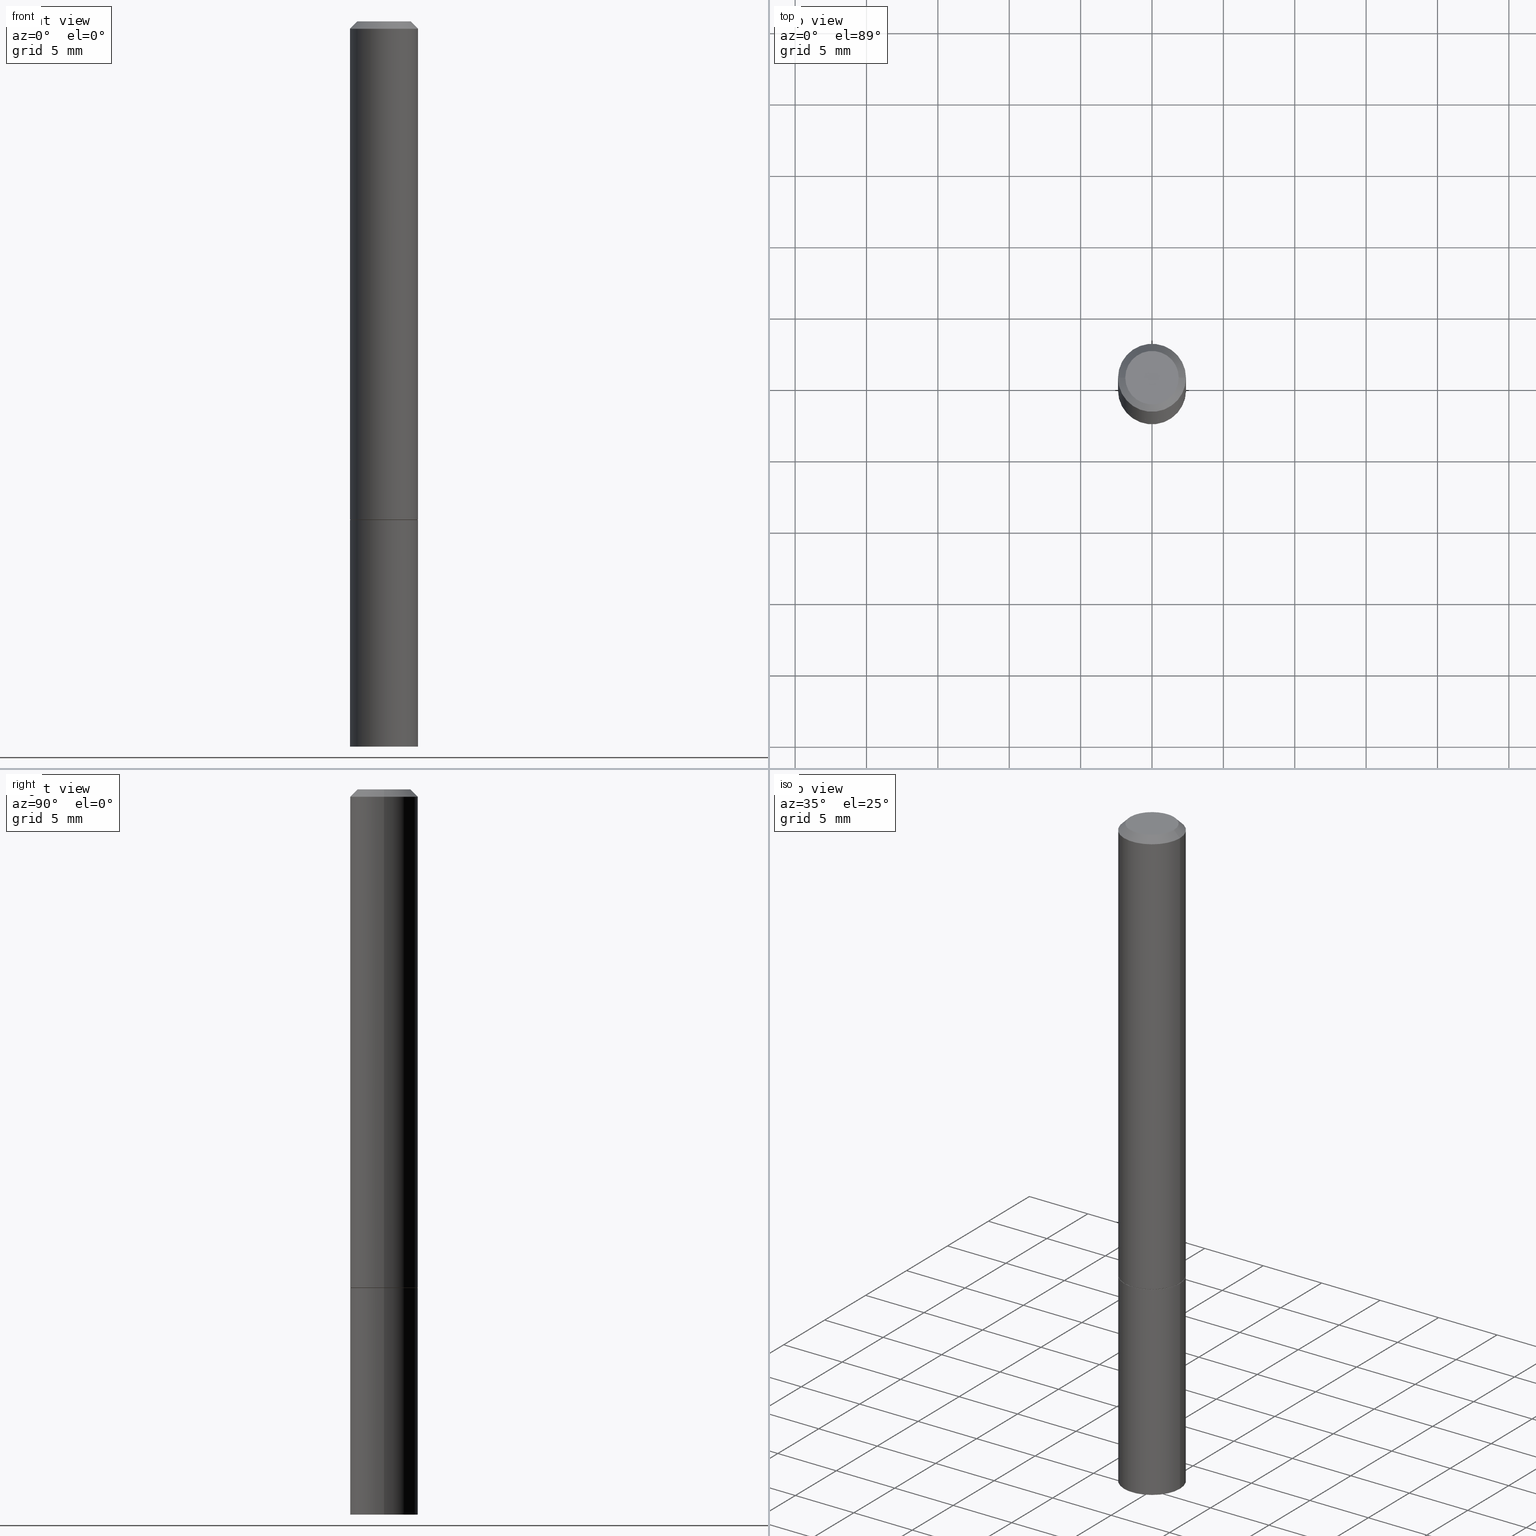
[diagram: canonical four-view strip — front | top / right | iso, engineering-drawing reading convention]
A machine part, canonical four-view strip (front | top / right | iso — engineering-drawing reading convention). The complete STEP part file that produces these views, byte-faithful:
ISO-10303-21;
HEADER;
FILE_DESCRIPTION (( 'STEP AP203' ),
    '1' );
FILE_NAME ('91276.STEP',
    '2024-03-01T04:29:36',
    ( '' ),
    ( '' ),
    'SwSTEP 2.0',
    'SolidWorks 2023',
    '' );
FILE_SCHEMA (( 'CONFIG_CONTROL_DESIGN' ));
ENDSEC;

DATA;
#1 = CARTESIAN_POINT ( 'NONE',  ( 4.890937612370281041E-31, -6.982962677686302702E-17, -0.02000000000000003511 ) ) ;
#2 = CC_DESIGN_APPROVAL ( #144, ( #53 ) ) ;
#3 = CARTESIAN_POINT ( 'NONE',  ( -0.07374999999999989897, 5.499083108677923596E-16, -3.723527850031188365E-30 ) ) ;
#4 = DIRECTION ( 'NONE',  ( 0.7071067811865461294, -7.319954787623251312E-15, -0.7071067811865489050 ) ) ;
#5 = CARTESIAN_POINT ( 'NONE',  ( 0.09274999999999999911, -5.448456629264727208E-15, -1.375000000000000000 ) ) ;
#6 = ADVANCED_FACE ( 'NONE', ( #48 ), #207, .T. ) ;
#7 = CIRCLE ( 'NONE', #46, 0.09374999999999984734 ) ;
#8 = CC_DESIGN_DATE_AND_TIME_ASSIGNMENT ( #56, #205, ( #53 ) ) ;
#9 = ORIENTED_EDGE ( 'NONE', *, *, #185, .T. ) ;
#10 = EDGE_LOOP ( 'NONE', ( #64, #193, #18, #32 ) ) ;
#11 = VECTOR ( 'NONE', #38, 39.37007874015748143 ) ;
#12 = LOCAL_TIME ( 23, 29, 36.00000000000000000, #322 ) ;
#13 = PLANE ( 'NONE',  #133 ) ;
#14 = APPROVAL_STATUS ( 'not_yet_approved' ) ;
#15 = CARTESIAN_POINT ( 'NONE',  ( 3.362519608504562260E-29, -4.800786840909324930E-15, -1.375000000000000000 ) ) ;
#16 = CIRCLE ( 'NONE', #202, 0.07374999999999989897 ) ;
#17 = ADVANCED_FACE ( 'NONE', ( #332 ), #13, .T. ) ;
#18 = ORIENTED_EDGE ( 'NONE', *, *, #180, .T. ) ;
#19 = APPROVAL_ROLE ( '' ) ;
#20 = CARTESIAN_POINT ( 'NONE',  ( 6.546527510331364135E-16, 0.09374999999999301947, -2.000000000000000444 ) ) ;
#21 = PERSON_AND_ORGANIZATION_ROLE ( 'design_owner' ) ;
#22 = DIRECTION ( 'NONE',  ( -1.000000000000000000, 6.982962677686265922E-15, -4.876176775795935793E-29 ) ) ;
#23 = EDGE_CURVE ( 'NONE', #87, #221, #306, .T. ) ;
#24 = DIRECTION ( 'NONE',  ( -2.445468806185136597E-29, 3.491481338843145583E-15, 1.000000000000000000 ) ) ;
#25 = CARTESIAN_POINT ( 'NONE',  ( 0.09274999999999999911, -5.448456629264727208E-15, -1.375000000000000000 ) ) ;
#26 = DIRECTION ( 'NONE',  ( -2.445468806185136877E-29, 3.491481338843145188E-15, 1.000000000000000000 ) ) ;
#27 = CC_DESIGN_SECURITY_CLASSIFICATION ( #53, ( #146 ) ) ;
#28 = DIRECTION ( 'NONE',  ( 1.000000000000000000, -6.982962677686273021E-15, 0.000000000000000000 ) ) ;
#29 = CC_DESIGN_DATE_AND_TIME_ASSIGNMENT ( #196, #304, ( #297 ) ) ;
#30 = EDGE_CURVE ( 'NONE', #125, #127, #242, .T. ) ;
#31 = CLOSED_SHELL ( 'NONE', ( #220, #110, #232, #189, #241, #6, #66, #179 ) ) ;
#32 = ORIENTED_EDGE ( 'NONE', *, *, #336, .F. ) ;
#33 = PERSON ( 'UNSPECIFIED', 'UNSPECIFIED', 'UNSPECIFIED', ('UNSPECIFIED'), ('UNSPECIFIED'), ('UNSPECIFIED') ) ;
#34 = EDGE_LOOP ( 'NONE', ( #124, #294, #218, #152 ) ) ;
#35 = VERTEX_POINT ( 'NONE', #44 ) ;
#36 = CARTESIAN_POINT ( 'NONE',  ( -0.09274999999999999911, -4.141758453491832014E-15, -1.375000000000000000 ) ) ;
#37 = ORIENTED_EDGE ( 'NONE', *, *, #107, .T. ) ;
#38 = DIRECTION ( 'NONE',  ( -2.445468806185136877E-29, 3.491481338843145188E-15, 1.000000000000000000 ) ) ;
#39 = EDGE_CURVE ( 'NONE', #355, #61, #45, .T. ) ;
#40 = CALENDAR_DATE ( 2024, 29, 2 ) ;
#41 = EDGE_LOOP ( 'NONE', ( #340, #151, #105, #99 ) ) ;
#42 = EDGE_CURVE ( 'NONE', #76, #355, #60, .T. ) ;
#43 = PRODUCT_RELATED_PRODUCT_CATEGORY ( 'detail', '', ( #74 ) ) ;
#44 = CARTESIAN_POINT ( 'NONE',  ( 0.09374999999999984734, -7.130013140679430017E-16, -0.02000000000000003511 ) ) ;
#45 = CIRCLE ( 'NONE', #292, 0.09374999999999998612 ) ;
#46 = AXIS2_PLACEMENT_3D ( 'NONE', #279, #156, #315 ) ;
#47 = SECURITY_CLASSIFICATION_LEVEL ( 'unclassified' ) ;
#48 = FACE_OUTER_BOUND ( 'NONE', #34, .T. ) ;
#49 = APPLICATION_CONTEXT ( 'configuration controlled 3d designs of mechanical parts and assemblies' ) ;
#50 = CALENDAR_DATE ( 2024, 29, 2 ) ;
#51 = DIRECTION ( 'NONE',  ( -1.000000000000000000, 6.982962677686265922E-15, -4.876176775795935793E-29 ) ) ;
#52 = AXIS2_PLACEMENT_3D ( 'NONE', #112, #291, #28 ) ;
#53 = SECURITY_CLASSIFICATION ( '', '', #47 ) ;
#54 = DIRECTION ( 'NONE',  ( 1.000000000000000000, -6.982962677686265922E-15, 4.876176775795935793E-29 ) ) ;
#55 = DIRECTION ( 'NONE',  ( -2.445468806185136597E-29, 3.491481338843145583E-15, 1.000000000000000000 ) ) ;
#56 = DATE_AND_TIME ( #258, #264 ) ;
#57 = CARTESIAN_POINT ( 'NONE',  ( -0.09374999999999984734, 5.848231242562233185E-16, -0.02000000000000003511 ) ) ;
#58 = DIRECTION ( 'NONE',  ( -1.000000000000000000, 6.982962677686266711E-15, 0.000000000000000000 ) ) ;
#59 = AXIS2_PLACEMENT_3D ( 'NONE', #318, #234, #51 ) ;
#60 = LINE ( 'NONE', #25, #343 ) ;
#61 = VERTEX_POINT ( 'NONE', #119 ) ;
#62 = AXIS2_PLACEMENT_3D ( 'NONE', #15, #160, #78 ) ;
#63 = CIRCLE ( 'NONE', #168, 0.07374999999999989897 ) ;
#64 = ORIENTED_EDGE ( 'NONE', *, *, #107, .F. ) ;
#65 = APPLICATION_CONTEXT ( 'configuration controlled 3d designs of mechanical parts and assemblies' ) ;
#66 = ADVANCED_FACE ( 'NONE', ( #138 ), #321, .F. ) ;
#67 = COORDINATED_UNIVERSAL_TIME_OFFSET ( 5, 0, .BEHIND. ) ;
#68 = FACE_OUTER_BOUND ( 'NONE', #244, .T. ) ;
#69 = EDGE_LOOP ( 'NONE', ( #148, #86, #198, #282 ) ) ;
#70 = APPROVAL ( #359, 'UNSPECIFIED' ) ;
#71 = APPROVAL_DATE_TIME ( #245, #70 ) ;
#72 = EDGE_LOOP ( 'NONE', ( #155, #9, #298, #75 ) ) ;
#73 = PERSON_AND_ORGANIZATION ( #33, #257 ) ;
#74 = PRODUCT ( '91276', '91276', '', ( #310 ) ) ;
#75 = ORIENTED_EDGE ( 'NONE', *, *, #91, .F. ) ;
#76 = VERTEX_POINT ( 'NONE', #5 ) ;
#77 = CYLINDRICAL_SURFACE ( 'NONE', #325, 0.09374999999999991673 ) ;
#78 = DIRECTION ( 'NONE',  ( 1.000000000000000000, -6.982962677686273021E-15, 0.000000000000000000 ) ) ;
#79 = LINE ( 'NONE', #293, #181 ) ;
#80 = AXIS2_PLACEMENT_3D ( 'NONE', #206, #254, #203 ) ;
#81 = CARTESIAN_POINT ( 'NONE',  ( -0.09375000000000001388, 6.661338147750940229E-16, -4.611501647113973995E-30 ) ) ;
#82 = CARTESIAN_POINT ( 'NONE',  ( 4.890937612370281041E-31, -6.982962677686302702E-17, -0.02000000000000003511 ) ) ;
#83 = DIRECTION ( 'NONE',  ( 2.445468806185136597E-29, -3.491481338843145583E-15, -1.000000000000000000 ) ) ;
#84 = CARTESIAN_POINT ( 'NONE',  ( 0.000000000000000000, 0.000000000000000000, 0.000000000000000000 ) ) ;
#85 = PLANE ( 'NONE',  #59 ) ;
#86 = ORIENTED_EDGE ( 'NONE', *, *, #209, .T. ) ;
#87 = VERTEX_POINT ( 'NONE', #235 ) ;
#88 = EDGE_CURVE ( 'NONE', #87, #123, #256, .T. ) ;
#89 = DIRECTION ( 'NONE',  ( 1.000000000000000000, -6.982962677686273021E-15, 0.000000000000000000 ) ) ;
#90 = CARTESIAN_POINT ( 'NONE',  ( 0.000000000000000000, 0.000000000000000000, 0.000000000000000000 ) ) ;
#91 = EDGE_CURVE ( 'NONE', #129, #221, #120, .T. ) ;
#92 = CONICAL_SURFACE ( 'NONE', #319, 0.09274999999999999911, 0.7853981633972689780 ) ;
#93 = ORIENTED_EDGE ( 'NONE', *, *, #334, .F. ) ;
#94 = CLOSED_SHELL ( 'NONE', ( #226, #17, #132, #236 ) ) ;
#95 = CALENDAR_DATE ( 2024, 29, 2 ) ;
#96 = CYLINDRICAL_SURFACE ( 'NONE', #327, 0.09375000000000001388 ) ;
#97 = ORIENTED_EDGE ( 'NONE', *, *, #91, .T. ) ;
#98 = APPROVAL_DATE_TIME ( #363, #113 ) ;
#99 = ORIENTED_EDGE ( 'NONE', *, *, #336, .T. ) ;
#100 = COORDINATED_UNIVERSAL_TIME_OFFSET ( 5, 0, .BEHIND. ) ;
#101 = DIRECTION ( 'NONE',  ( 2.438088387897960049E-29, -3.491481338843145188E-15, -1.000000000000000000 ) ) ;
#102 = CIRCLE ( 'NONE', #349, 0.09375000000000001388 ) ;
#103 = AXIS2_PLACEMENT_3D ( 'NONE', #281, #164, #224 ) ;
#104 = LENGTH_MEASURE_WITH_UNIT ( LENGTH_MEASURE( 0.02539999999999999897 ), #361 );
#105 = ORIENTED_EDGE ( 'NONE', *, *, #30, .T. ) ;
#106 = PERSON_AND_ORGANIZATION_ROLE ( 'creator' ) ;
#107 = EDGE_CURVE ( 'NONE', #61, #127, #287, .T. ) ;
#108 = DIRECTION ( 'NONE',  ( -2.445468806185136597E-29, 3.491481338843145583E-15, 1.000000000000000000 ) ) ;
#109 = CARTESIAN_POINT ( 'NONE',  ( 4.890937612370273194E-29, -6.982962677686291165E-15, -2.000000000000000000 ) ) ;
#110 = ADVANCED_FACE ( 'NONE', ( #173 ), #347, .T. ) ;
#111 = CARTESIAN_POINT ( 'NONE',  ( 0.000000000000000000, 0.000000000000000000, 0.000000000000000000 ) ) ;
#112 = CARTESIAN_POINT ( 'NONE',  ( 3.362519608504562260E-29, -4.800786840909324930E-15, -1.375000000000000000 ) ) ;
#113 = APPROVAL ( #14, 'UNSPECIFIED' ) ;
#114 = AXIS2_PLACEMENT_3D ( 'NONE', #320, #117, #22 ) ;
#115 = CARTESIAN_POINT ( 'NONE',  ( -0.09274999999999999911, -4.136459999143609611E-15, -1.375000000000000000 ) ) ;
#116 = EDGE_CURVE ( 'NONE', #239, #35, #79, .T. ) ;
#117 = DIRECTION ( 'NONE',  ( 2.438088387897960049E-29, -3.491481338843145188E-15, -1.000000000000000000 ) ) ;
#118 = DIRECTION ( 'NONE',  ( 1.000000000000000000, -6.982962677686263555E-15, 0.000000000000000000 ) ) ;
#119 = CARTESIAN_POINT ( 'NONE',  ( -0.09374999999999998612, -1.767428678398576714E-15, -1.373999999999999666 ) ) ;
#120 = CIRCLE ( 'NONE', #80, 0.09375000000000001388 ) ;
#121 = AXIS2_PLACEMENT_3D ( 'NONE', #170, #344, #290 ) ;
#122 = EDGE_CURVE ( 'NONE', #271, #76, #337, .T. ) ;
#123 = VERTEX_POINT ( 'NONE', #342 ) ;
#124 = ORIENTED_EDGE ( 'NONE', *, *, #209, .F. ) ;
#125 = VERTEX_POINT ( 'NONE', #3 ) ;
#126 =( CONVERSION_BASED_UNIT ( 'INCH', #104 ) LENGTH_UNIT ( ) NAMED_UNIT ( #201 ) );
#127 = VERTEX_POINT ( 'NONE', #57 ) ;
#128 = PERSON_AND_ORGANIZATION_ROLE ( 'classification_officer' ) ;
#129 = VERTEX_POINT ( 'NONE', #200 ) ;
#130 = CC_DESIGN_PERSON_AND_ORGANIZATION_ASSIGNMENT ( #159, #128, ( #53 ) ) ;
#131 = COORDINATED_UNIVERSAL_TIME_OFFSET ( 5, 0, .BEHIND. ) ;
#132 = ADVANCED_FACE ( 'NONE', ( #350 ), #85, .F. ) ;
#133 = AXIS2_PLACEMENT_3D ( 'NONE', #20, #101, #360 ) ;
#134 = APPROVAL_PERSON_ORGANIZATION ( #324, #144, #261 ) ;
#135 = CARTESIAN_POINT ( 'NONE',  ( 0.09374999999999998612, -5.451948110603567849E-15, -1.373999999999999666 ) ) ;
#136 = DIRECTION ( 'NONE',  ( -2.445468806185136597E-29, 3.491481338843145583E-15, 1.000000000000000000 ) ) ;
#137 = DIRECTION ( 'NONE',  ( -2.445468806185136877E-29, 3.491481338843145188E-15, 1.000000000000000000 ) ) ;
#138 = FACE_OUTER_BOUND ( 'NONE', #248, .T. ) ;
#139 = APPROVAL_DATE_TIME ( #199, #144 ) ;
#140 = AXIS2_PLACEMENT_3D ( 'NONE', #82, #83, #58 ) ;
#141 = CIRCLE ( 'NONE', #353, 0.09374999999999984734 ) ;
#142 = CARTESIAN_POINT ( 'NONE',  ( 0.000000000000000000, 0.000000000000000000, 0.000000000000000000 ) ) ;
#143 = UNCERTAINTY_MEASURE_WITH_UNIT (LENGTH_MEASURE( 1.000000000000000082E-05 ), #126, 'distance_accuracy_value', 'NONE');
#144 = APPROVAL ( #288, 'UNSPECIFIED' ) ;
#145 = AXIS2_PLACEMENT_3D ( 'NONE', #90, #331, #216 ) ;
#146 = PRODUCT_DEFINITION_FORMATION_WITH_SPECIFIED_SOURCE ( 'ANY', '', #74, .NOT_KNOWN. ) ;
#147 = EDGE_LOOP ( 'NONE', ( #163, #303, #280, #338 ) ) ;
#148 = ORIENTED_EDGE ( 'NONE', *, *, #270, .T. ) ;
#149 = ORIENTED_EDGE ( 'NONE', *, *, #197, .T. ) ;
#150 = AXIS2_PLACEMENT_3D ( 'NONE', #174, #108, #230 ) ;
#151 = ORIENTED_EDGE ( 'NONE', *, *, #317, .F. ) ;
#152 = ORIENTED_EDGE ( 'NONE', *, *, #252, .F. ) ;
#153 =( NAMED_UNIT ( * ) SI_UNIT ( $, .STERADIAN. ) SOLID_ANGLE_UNIT ( ) );
#154 = DIRECTION ( 'NONE',  ( -1.000000000000000000, 6.982962677686266711E-15, 0.000000000000000000 ) ) ;
#155 = ORIENTED_EDGE ( 'NONE', *, *, #299, .F. ) ;
#156 = DIRECTION ( 'NONE',  ( -2.445468806185136597E-29, 3.491481338843145583E-15, 1.000000000000000000 ) ) ;
#157 = CARTESIAN_POINT ( 'NONE',  ( 3.360074139698376657E-29, -4.797295359570480345E-15, -1.373999999999999666 ) ) ;
#158 = CC_DESIGN_APPROVAL ( #70, ( #146 ) ) ;
#159 = PERSON_AND_ORGANIZATION ( #33, #257 ) ;
#160 = DIRECTION ( 'NONE',  ( -2.445468806185136597E-29, 3.491481338843145583E-15, 1.000000000000000000 ) ) ;
#161 =( NAMED_UNIT ( * ) PLANE_ANGLE_UNIT ( ) SI_UNIT ( $, .RADIAN. ) );
#162 = CARTESIAN_POINT ( 'NONE',  ( 3.362519608504562260E-29, -4.800786840909324930E-15, -1.375000000000000000 ) ) ;
#163 = ORIENTED_EDGE ( 'NONE', *, *, #88, .T. ) ;
#164 = DIRECTION ( 'NONE',  ( 0.000000000000000000, 0.000000000000000000, 1.000000000000000000 ) ) ;
#165 = DIRECTION ( 'NONE',  ( -2.445468806185136597E-29, 3.491481338843145583E-15, 1.000000000000000000 ) ) ;
#166 = FACE_OUTER_BOUND ( 'NONE', #267, .T. ) ;
#167 = AXIS2_PLACEMENT_3D ( 'NONE', #231, #204, #178 ) ;
#168 = AXIS2_PLACEMENT_3D ( 'NONE', #289, #24, #253 ) ;
#169 = CALENDAR_DATE ( 2024, 29, 2 ) ;
#170 = CARTESIAN_POINT ( 'NONE',  ( 3.362519608504562260E-29, -4.800786840909324930E-15, -1.375000000000000000 ) ) ;
#171 = DIRECTION ( 'NONE',  ( -2.445468806185136597E-29, 3.491481338843145583E-15, 1.000000000000000000 ) ) ;
#172 = CARTESIAN_POINT ( 'NONE',  ( 3.362519608504562260E-29, -4.800786840909324930E-15, -1.375000000000000000 ) ) ;
#173 = FACE_OUTER_BOUND ( 'NONE', #358, .T. ) ;
#174 = CARTESIAN_POINT ( 'NONE',  ( 3.360074139698376657E-29, -4.797295359570480345E-15, -1.373999999999999666 ) ) ;
#175 = DIRECTION ( 'NONE',  ( -2.445468806185136877E-29, 3.491481338843145188E-15, 1.000000000000000000 ) ) ;
#176 = AXIS2_PLACEMENT_3D ( 'NONE', #84, #249, #251 ) ;
#177 = SHAPE_DEFINITION_REPRESENTATION ( #313, #246 ) ;
#178 = DIRECTION ( 'NONE',  ( 1.000000000000000000, -6.982962677686265922E-15, 4.876176775795935793E-29 ) ) ;
#179 = ADVANCED_FACE ( 'NONE', ( #166 ), #285, .F. ) ;
#180 = EDGE_CURVE ( 'NONE', #355, #35, #323, .T. ) ;
#181 = VECTOR ( 'NONE', #4, 39.37007874015748143 ) ;
#182 = MANIFOLD_SOLID_BREP ( 'Body-Move/Copy2[2]', #31 ) ;
#183 = CONICAL_SURFACE ( 'NONE', #140, 0.09374999999999984734, 0.7853981633974463916 ) ;
#184 = FACE_OUTER_BOUND ( 'NONE', #147, .T. ) ;
#185 = EDGE_CURVE ( 'NONE', #123, #87, #102, .T. ) ;
#186 = DIRECTION ( 'NONE',  ( 1.000000000000000000, -6.982962677686266711E-15, 0.000000000000000000 ) ) ;
#187 = CARTESIAN_POINT ( 'NONE',  ( 4.890937612370281041E-31, -6.982962677686302702E-17, -0.02000000000000003511 ) ) ;
#188 = EDGE_LOOP ( 'NONE', ( #268, #97 ) ) ;
#189 = ADVANCED_FACE ( 'NONE', ( #345 ), #183, .T. ) ;
#190 = PERSON_AND_ORGANIZATION ( #33, #257 ) ;
#191 = CARTESIAN_POINT ( 'NONE',  ( -0.09374999999999984734, 5.848231242562233185E-16, -0.02000000000000003511 ) ) ;
#192 = PERSON_AND_ORGANIZATION_ROLE ( 'design_supplier' ) ;
#193 = ORIENTED_EDGE ( 'NONE', *, *, #252, .T. ) ;
#194 = FACE_OUTER_BOUND ( 'NONE', #69, .T. ) ;
#195 = ORIENTED_EDGE ( 'NONE', *, *, #39, .T. ) ;
#196 = DATE_AND_TIME ( #95, #215 ) ;
#197 = EDGE_CURVE ( 'NONE', #239, #125, #16, .T. ) ;
#198 = ORIENTED_EDGE ( 'NONE', *, *, #39, .F. ) ;
#199 = DATE_AND_TIME ( #169, #12 ) ;
#200 = CARTESIAN_POINT ( 'NONE',  ( -0.09375000000000001388, -5.225740944522714123E-15, -1.375000000000000000 ) ) ;
#201 = DIMENSIONAL_EXPONENTS ( 1.000000000000000000, 0.000000000000000000, 0.000000000000000000, 0.000000000000000000, 0.000000000000000000, 0.000000000000000000, 0.000000000000000000 ) ;
#202 = AXIS2_PLACEMENT_3D ( 'NONE', #142, #300, #266 ) ;
#203 = DIRECTION ( 'NONE',  ( 1.000000000000000000, -6.982962677686261189E-15, 0.000000000000000000 ) ) ;
#204 = DIRECTION ( 'NONE',  ( -2.438088387897960049E-29, 3.491481338843145188E-15, 1.000000000000000000 ) ) ;
#205 = DATE_TIME_ROLE ( 'classification_date' ) ;
#206 = CARTESIAN_POINT ( 'NONE',  ( 3.362519608504562260E-29, -4.800786840909324930E-15, -1.375000000000000000 ) ) ;
#207 = CONICAL_SURFACE ( 'NONE', #62, 0.09274999999999999911, 0.7853981633972689780 ) ;
#208 = AXIS2_PLACEMENT_3D ( 'NONE', #172, #165, #341 ) ;
#209 = EDGE_CURVE ( 'NONE', #271, #61, #238, .T. ) ;
#210 = ORIENTED_EDGE ( 'NONE', *, *, #88, .F. ) ;
#211 = VECTOR ( 'NONE', #175, 39.37007874015748143 ) ;
#212 = CC_DESIGN_PERSON_AND_ORGANIZATION_ASSIGNMENT ( #73, #192, ( #146 ) ) ;
#213 = CARTESIAN_POINT ( 'NONE',  ( 0.09375000000000001388, -5.455439591942412434E-15, -1.375000000000000000 ) ) ;
#214 = AXIS2_PLACEMENT_3D ( 'NONE', #260, #171, #366 ) ;
#215 = LOCAL_TIME ( 23, 29, 36.00000000000000000, #67 ) ;
#216 = DIRECTION ( 'NONE',  ( 1.000000000000000000, -6.982962677686265922E-15, 4.876176775795935793E-29 ) ) ;
#217 = CONICAL_SURFACE ( 'NONE', #276, 0.09374999999999984734, 0.7853981633974463916 ) ;
#218 = ORIENTED_EDGE ( 'NONE', *, *, #42, .T. ) ;
#219 = PERSON_AND_ORGANIZATION ( #33, #257 ) ;
#220 = ADVANCED_FACE ( 'NONE', ( #194 ), #92, .T. ) ;
#221 = VERTEX_POINT ( 'NONE', #213 ) ;
#222 = CC_DESIGN_PERSON_AND_ORGANIZATION_ASSIGNMENT ( #307, #335, ( #146 ) ) ;
#223 = PERSON_AND_ORGANIZATION ( #33, #257 ) ;
#224 = DIRECTION ( 'NONE',  ( 1.000000000000000000, 0.000000000000000000, 0.000000000000000000 ) ) ;
#225 =( GEOMETRIC_REPRESENTATION_CONTEXT ( 3 ) GLOBAL_UNCERTAINTY_ASSIGNED_CONTEXT ( ( #143 ) ) GLOBAL_UNIT_ASSIGNED_CONTEXT ( ( #126, #161, #153 ) ) REPRESENTATION_CONTEXT ( 'NONE', 'WORKASPACE' ) );
#226 = ADVANCED_FACE ( 'NONE', ( #184 ), #302, .T. ) ;
#227 = COORDINATED_UNIVERSAL_TIME_OFFSET ( 5, 0, .BEHIND. ) ;
#228 = CARTESIAN_POINT ( 'NONE',  ( 0.07374999999999989897, -6.094815207017964156E-16, 3.931526600461600150E-30 ) ) ;
#229 = ORIENTED_EDGE ( 'NONE', *, *, #334, .T. ) ;
#230 = DIRECTION ( 'NONE',  ( 1.000000000000000000, -6.982962677686263555E-15, 0.000000000000000000 ) ) ;
#231 = CARTESIAN_POINT ( 'NONE',  ( 3.362519608504562260E-29, -4.800786840909324930E-15, -1.375000000000000000 ) ) ;
#232 = ADVANCED_FACE ( 'NONE', ( #68 ), #217, .T. ) ;
#233 = FACE_OUTER_BOUND ( 'NONE', #10, .T. ) ;
#234 = DIRECTION ( 'NONE',  ( 2.438088387897960049E-29, -3.491481338843145188E-15, -1.000000000000000000 ) ) ;
#235 = CARTESIAN_POINT ( 'NONE',  ( 0.09375000000000001388, -7.637615428719378669E-15, -2.000000000000000000 ) ) ;
#236 = ADVANCED_FACE ( 'NONE', ( #273 ), #96, .T. ) ;
#237 = CARTESIAN_POINT ( 'NONE',  ( -0.09374999999999991673, 6.661338147750933326E-16, -4.611501647113969791E-30 ) ) ;
#238 = LINE ( 'NONE', #36, #352 ) ;
#239 = VERTEX_POINT ( 'NONE', #228 ) ;
#240 = DIRECTION ( 'NONE',  ( -0.7071067811864205632, 7.493145998869895043E-15, 0.7071067811866742492 ) ) ;
#241 = ADVANCED_FACE ( 'NONE', ( #233 ), #77, .T. ) ;
#242 = LINE ( 'NONE', #191, #295 ) ;
#243 = DIRECTION ( 'NONE',  ( -2.445468806185136597E-29, 3.491481338843145583E-15, 1.000000000000000000 ) ) ;
#244 = EDGE_LOOP ( 'NONE', ( #265, #356, #229, #354 ) ) ;
#245 = DATE_AND_TIME ( #40, #351 ) ;
#246 = ADVANCED_BREP_SHAPE_REPRESENTATION ( '91276', ( #309, #182, #103 ), #225 ) ;
#247 = DIRECTION ( 'NONE',  ( -2.445468806185136597E-29, 3.491481338843145583E-15, 1.000000000000000000 ) ) ;
#248 = EDGE_LOOP ( 'NONE', ( #314, #333 ) ) ;
#249 = DIRECTION ( 'NONE',  ( -2.445468806185136597E-29, 3.491481338843145583E-15, 1.000000000000000000 ) ) ;
#250 = CARTESIAN_POINT ( 'NONE',  ( 0.000000000000000000, 0.000000000000000000, 0.000000000000000000 ) ) ;
#251 = DIRECTION ( 'NONE',  ( 1.000000000000000000, -6.982962677686266711E-15, 4.876176775795935793E-29 ) ) ;
#252 = EDGE_CURVE ( 'NONE', #61, #355, #269, .T. ) ;
#253 = DIRECTION ( 'NONE',  ( 1.000000000000000000, -6.982962677686267499E-15, 4.876176775795935232E-29 ) ) ;
#254 = DIRECTION ( 'NONE',  ( -2.445468806185136597E-29, 3.491481338843145583E-15, 1.000000000000000000 ) ) ;
#255 = EDGE_CURVE ( 'NONE', #221, #129, #311, .T. ) ;
#256 = CIRCLE ( 'NONE', #214, 0.09375000000000001388 ) ;
#257 = ORGANIZATION ( 'UNSPECIFIED', 'UNSPECIFIED', '' ) ;
#258 = CALENDAR_DATE ( 2024, 29, 2 ) ;
#259 = DIRECTION ( 'NONE',  ( -2.445468806185136597E-29, 3.491481338843145583E-15, 1.000000000000000000 ) ) ;
#260 = CARTESIAN_POINT ( 'NONE',  ( 4.890937612370273194E-29, -6.982962677686291165E-15, -2.000000000000000000 ) ) ;
#261 = APPROVAL_ROLE ( '' ) ;
#262 = DIRECTION ( 'NONE',  ( 0.7071067811864205632, -2.468850131080928224E-15, 0.7071067811866742492 ) ) ;
#263 = VECTOR ( 'NONE', #137, 39.37007874015748143 ) ;
#264 = LOCAL_TIME ( 23, 29, 36.00000000000000000, #100 ) ;
#265 = ORIENTED_EDGE ( 'NONE', *, *, #197, .F. ) ;
#266 = DIRECTION ( 'NONE',  ( 1.000000000000000000, -6.982962677686267499E-15, 4.876176775795935232E-29 ) ) ;
#267 = EDGE_LOOP ( 'NONE', ( #278, #149 ) ) ;
#268 = ORIENTED_EDGE ( 'NONE', *, *, #255, .T. ) ;
#269 = CIRCLE ( 'NONE', #150, 0.09374999999999998612 ) ;
#270 = EDGE_CURVE ( 'NONE', #76, #271, #328, .T. ) ;
#271 = VERTEX_POINT ( 'NONE', #115 ) ;
#272 = APPLICATION_PROTOCOL_DEFINITION ( 'international standard', 'config_control_design', 1994, #49 ) ;
#273 = FACE_OUTER_BOUND ( 'NONE', #72, .T. ) ;
#274 = CARTESIAN_POINT ( 'NONE',  ( 0.09375000000000001388, -6.546527510330875041E-16, 4.571415727308690506E-30 ) ) ;
#275 = DESIGN_CONTEXT ( 'detailed design', #65, 'design' ) ;
#276 = AXIS2_PLACEMENT_3D ( 'NONE', #187, #305, #154 ) ;
#277 = VECTOR ( 'NONE', #26, 39.37007874015748143 ) ;
#278 = ORIENTED_EDGE ( 'NONE', *, *, #317, .T. ) ;
#279 = CARTESIAN_POINT ( 'NONE',  ( 4.890937612370281041E-31, -6.982962677686302702E-17, -0.02000000000000003511 ) ) ;
#280 = ORIENTED_EDGE ( 'NONE', *, *, #255, .F. ) ;
#281 = CARTESIAN_POINT ( 'NONE',  ( 0.000000000000000000, 0.000000000000000000, 0.000000000000000000 ) ) ;
#282 = ORIENTED_EDGE ( 'NONE', *, *, #42, .F. ) ;
#283 = CC_DESIGN_PERSON_AND_ORGANIZATION_ASSIGNMENT ( #223, #106, ( #297 ) ) ;
#284 = PERSON_AND_ORGANIZATION ( #33, #257 ) ;
#285 = PLANE ( 'NONE',  #114 ) ;
#286 = LINE ( 'NONE', #81, #277 ) ;
#287 = LINE ( 'NONE', #237, #211 ) ;
#288 = APPROVAL_STATUS ( 'not_yet_approved' ) ;
#289 = CARTESIAN_POINT ( 'NONE',  ( 0.000000000000000000, 0.000000000000000000, 0.000000000000000000 ) ) ;
#290 = DIRECTION ( 'NONE',  ( 1.000000000000000000, -6.982962677686273021E-15, 0.000000000000000000 ) ) ;
#291 = DIRECTION ( 'NONE',  ( -2.445468806185136597E-29, 3.491481338843145583E-15, 1.000000000000000000 ) ) ;
#292 = AXIS2_PLACEMENT_3D ( 'NONE', #157, #243, #118 ) ;
#293 = CARTESIAN_POINT ( 'NONE',  ( 0.09374999999999984734, -7.130013140679430017E-16, -0.02000000000000003511 ) ) ;
#294 = ORIENTED_EDGE ( 'NONE', *, *, #122, .T. ) ;
#295 = VECTOR ( 'NONE', #308, 39.37007874015748143 ) ;
#296 = APPROVAL_PERSON_ORGANIZATION ( #190, #113, #19 ) ;
#297 = PRODUCT_DEFINITION ( 'UNKNOWN', '', #146, #275 ) ;
#298 = ORIENTED_EDGE ( 'NONE', *, *, #23, .T. ) ;
#299 = EDGE_CURVE ( 'NONE', #123, #129, #286, .T. ) ;
#300 = DIRECTION ( 'NONE',  ( -2.445468806185136597E-29, 3.491481338843145583E-15, 1.000000000000000000 ) ) ;
#301 = CC_DESIGN_APPROVAL ( #113, ( #297 ) ) ;
#302 = CYLINDRICAL_SURFACE ( 'NONE', #145, 0.09375000000000001388 ) ;
#303 = ORIENTED_EDGE ( 'NONE', *, *, #299, .T. ) ;
#304 = DATE_TIME_ROLE ( 'creation_date' ) ;
#305 = DIRECTION ( 'NONE',  ( 2.445468806185136597E-29, -3.491481338843145583E-15, -1.000000000000000000 ) ) ;
#306 = LINE ( 'NONE', #274, #11 ) ;
#307 = PERSON_AND_ORGANIZATION ( #33, #257 ) ;
#308 = DIRECTION ( 'NONE',  ( -0.7071067811865461294, 2.468850131082242072E-15, -0.7071067811865489050 ) ) ;
#309 = MANIFOLD_SOLID_BREP ( 'Body-Move/Copy2[1]', #94 ) ;
#310 = MECHANICAL_CONTEXT ( 'NONE', #49, 'mechanical' ) ;
#311 = CIRCLE ( 'NONE', #208, 0.09375000000000001388 ) ;
#312 = EDGE_LOOP ( 'NONE', ( #210, #362 ) ) ;
#313 = PRODUCT_DEFINITION_SHAPE ( 'NONE', 'NONE',  #297 ) ;
#314 = ORIENTED_EDGE ( 'NONE', *, *, #270, .F. ) ;
#315 = DIRECTION ( 'NONE',  ( 1.000000000000000000, -6.982962677686266711E-15, 0.000000000000000000 ) ) ;
#316 = DIRECTION ( 'NONE',  ( 1.000000000000000000, -6.982962677686266711E-15, 4.876176775795935793E-29 ) ) ;
#317 = EDGE_CURVE ( 'NONE', #125, #239, #63, .T. ) ;
#318 = CARTESIAN_POINT ( 'NONE',  ( 6.546527510331211293E-16, 0.09374999999999521216, -1.375000000000000222 ) ) ;
#319 = AXIS2_PLACEMENT_3D ( 'NONE', #162, #247, #89 ) ;
#320 = CARTESIAN_POINT ( 'NONE',  ( 5.149934974793614008E-16, 0.07374999999999989897, -2.574967487396815879E-16 ) ) ;
#321 = PLANE ( 'NONE',  #167 ) ;
#322 = COORDINATED_UNIVERSAL_TIME_OFFSET ( 5, 0, .BEHIND. ) ;
#323 = LINE ( 'NONE', #365, #263 ) ;
#324 = PERSON_AND_ORGANIZATION ( #33, #257 ) ;
#325 = AXIS2_PLACEMENT_3D ( 'NONE', #111, #364, #316 ) ;
#326 = APPROVAL_PERSON_ORGANIZATION ( #219, #70, #339 ) ;
#327 = AXIS2_PLACEMENT_3D ( 'NONE', #250, #136, #54 ) ;
#328 = CIRCLE ( 'NONE', #121, 0.09274999999999999911 ) ;
#329 = ORIENTED_EDGE ( 'NONE', *, *, #180, .F. ) ;
#330 = LOCAL_TIME ( 23, 29, 36.00000000000000000, #227 ) ;
#331 = DIRECTION ( 'NONE',  ( -2.445468806185136597E-29, 3.491481338843145583E-15, 1.000000000000000000 ) ) ;
#332 = FACE_OUTER_BOUND ( 'NONE', #312, .T. ) ;
#333 = ORIENTED_EDGE ( 'NONE', *, *, #122, .F. ) ;
#334 = EDGE_CURVE ( 'NONE', #35, #127, #141, .T. ) ;
#335 = PERSON_AND_ORGANIZATION_ROLE ( 'creator' ) ;
#336 = EDGE_CURVE ( 'NONE', #127, #35, #7, .T. ) ;
#337 = CIRCLE ( 'NONE', #52, 0.09274999999999999911 ) ;
#338 = ORIENTED_EDGE ( 'NONE', *, *, #23, .F. ) ;
#339 = APPROVAL_ROLE ( '' ) ;
#340 = ORIENTED_EDGE ( 'NONE', *, *, #116, .F. ) ;
#341 = DIRECTION ( 'NONE',  ( 1.000000000000000000, -6.982962677686261189E-15, 0.000000000000000000 ) ) ;
#342 = CARTESIAN_POINT ( 'NONE',  ( -0.09375000000000001388, -5.225740944522714123E-15, -2.000000000000000000 ) ) ;
#343 = VECTOR ( 'NONE', #262, 39.37007874015748854 ) ;
#344 = DIRECTION ( 'NONE',  ( -2.445468806185136597E-29, 3.491481338843145583E-15, 1.000000000000000000 ) ) ;
#345 = FACE_OUTER_BOUND ( 'NONE', #41, .T. ) ;
#346 = DIRECTION ( 'NONE',  ( 1.000000000000000000, -6.982962677686261189E-15, 0.000000000000000000 ) ) ;
#347 = CYLINDRICAL_SURFACE ( 'NONE', #176, 0.09374999999999991673 ) ;
#348 = CC_DESIGN_PERSON_AND_ORGANIZATION_ASSIGNMENT ( #284, #21, ( #74 ) ) ;
#349 = AXIS2_PLACEMENT_3D ( 'NONE', #109, #55, #346 ) ;
#350 = FACE_OUTER_BOUND ( 'NONE', #188, .T. ) ;
#351 = LOCAL_TIME ( 23, 29, 36.00000000000000000, #131 ) ;
#352 = VECTOR ( 'NONE', #240, 39.37007874015748854 ) ;
#353 = AXIS2_PLACEMENT_3D ( 'NONE', #1, #259, #186 ) ;
#354 = ORIENTED_EDGE ( 'NONE', *, *, #30, .F. ) ;
#355 = VERTEX_POINT ( 'NONE', #135 ) ;
#356 = ORIENTED_EDGE ( 'NONE', *, *, #116, .T. ) ;
#357 = APPLICATION_PROTOCOL_DEFINITION ( 'international standard', 'config_control_design', 1994, #65 ) ;
#358 = EDGE_LOOP ( 'NONE', ( #195, #37, #93, #329 ) ) ;
#359 = APPROVAL_STATUS ( 'not_yet_approved' ) ;
#360 = DIRECTION ( 'NONE',  ( -1.000000000000000000, 6.982962677686265922E-15, -4.876176775795935793E-29 ) ) ;
#361 =( LENGTH_UNIT ( ) NAMED_UNIT ( * ) SI_UNIT ( $, .METRE. ) );
#362 = ORIENTED_EDGE ( 'NONE', *, *, #185, .F. ) ;
#363 = DATE_AND_TIME ( #50, #330 ) ;
#364 = DIRECTION ( 'NONE',  ( -2.445468806185136597E-29, 3.491481338843145583E-15, 1.000000000000000000 ) ) ;
#365 = CARTESIAN_POINT ( 'NONE',  ( 0.09374999999999991673, -6.546527510330869125E-16, 4.571415727308685602E-30 ) ) ;
#366 = DIRECTION ( 'NONE',  ( 1.000000000000000000, -6.982962677686261189E-15, 0.000000000000000000 ) ) ;
ENDSEC;
END-ISO-10303-21;
